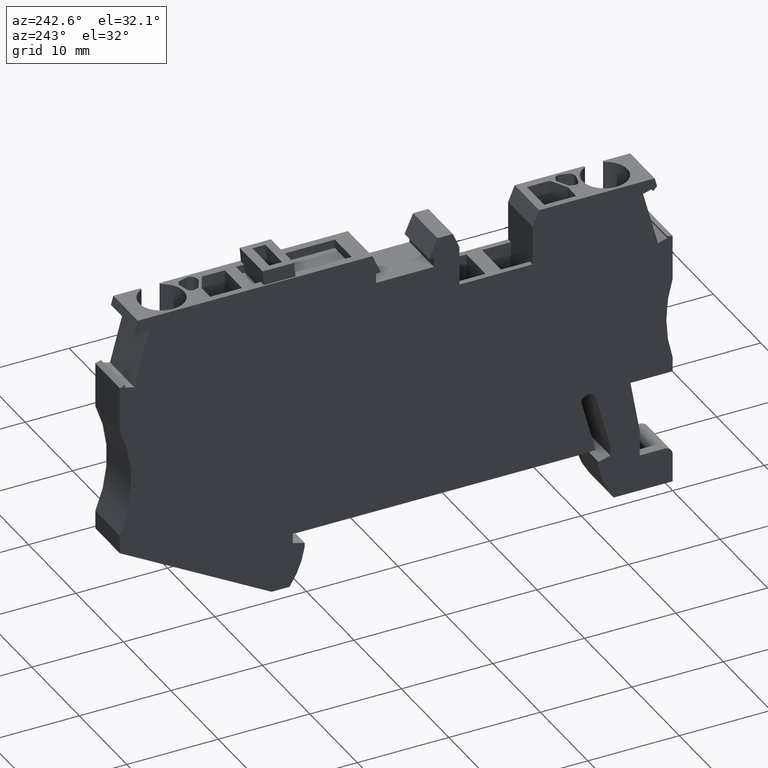
[diagram: clean part render]
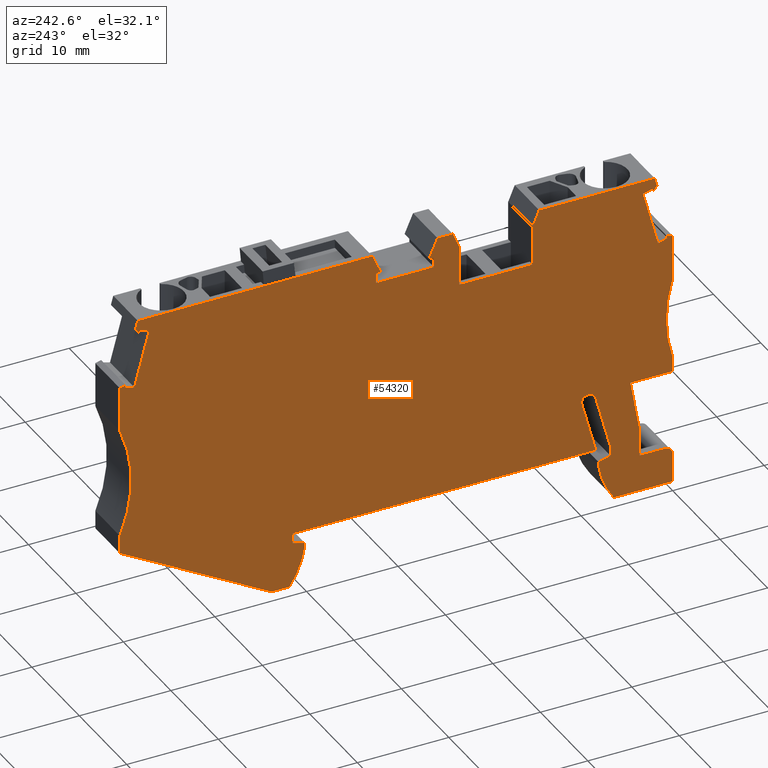
[diagram: same view with one face highlighted and labeled with its STEP entity id]
A machine part, auxiliary view. The second image highlights one B-rep face of the part: STEP entity #54320.
In plain terms, the highlighted planar face has unit normal (1, 0, 0).
Its self-contained STEP definition (entity closure, byte-faithful):
#670=CARTESIAN_POINT('',(-15.5678327783275,-38.3999999999948,
48.5199999999973));
#680=VERTEX_POINT('',#670);
#710=CARTESIAN_POINT('',(-15.5678327783241,-40.5280919748539,
48.5199999999973));
#720=DIRECTION('',(0.,-1.,0.));
#730=VECTOR('',#720,1.);
#740=LINE('',#710,#730);
#750=CARTESIAN_POINT('',(-15.5678327783241,-39.5000000000014,
48.5199999999973));
#760=VERTEX_POINT('',#750);
#770=EDGE_CURVE('',#680,#760,#740,.T.);
#1300=CARTESIAN_POINT('',(-18.7678327783247,-40.4000000000018,
48.5199999999973));
#1310=VERTEX_POINT('',#1300);
#1340=CARTESIAN_POINT('',(-18.7678327783247,-40.1351813799645,
48.5199999999973));
#1350=DIRECTION('',(0.,1.,0.));
#1360=VECTOR('',#1350,1.);
#1370=LINE('',#1340,#1360);
#1380=CARTESIAN_POINT('',(-18.7678327783247,-37.5384100015805,
48.5199999999973));
#1390=VERTEX_POINT('',#1380);
#1400=EDGE_CURVE('',#1310,#1390,#1370,.T.);
#1690=CARTESIAN_POINT('',(9.51676875458973,-11.2550000000016,
48.5199999999973));
#1700=VERTEX_POINT('',#1690);
#1850=CARTESIAN_POINT('',(10.0446672216767,-11.2550000000016,
48.5199999999973));
#1860=VERTEX_POINT('',#1850);
#1890=CARTESIAN_POINT('',(-30.9543174626305,-11.2550000000016,
48.5199999999973));
#1900=DIRECTION('',(1.,0.,0.));
#1910=VECTOR('',#1900,1.);
#1920=LINE('',#1890,#1910);
#1930=EDGE_CURVE('',#1700,#1860,#1920,.T.);
#2610=CARTESIAN_POINT('',(3.71966722167661,-12.3250000000012,
48.5199999999973));
#2620=VERTEX_POINT('',#2610);
#2670=CARTESIAN_POINT('',(-31.0856969427963,-12.3249999999992,
48.5199999999942));
#2680=DIRECTION('',(-1.,5.79813974610488E-14,0.));
#2690=VECTOR('',#2680,1.);
#2700=LINE('',#2670,#2690);
#2710=CARTESIAN_POINT('',(10.0446672216768,-12.3250000000016,
48.5199999999973));
#2720=VERTEX_POINT('',#2710);
#2730=EDGE_CURVE('',#2720,#2620,#2700,.T.);
#3660=CARTESIAN_POINT('',(-12.4395449513892,-32.6963521812907,
48.5199999999973));
#3670=VERTEX_POINT('',#3660);
#3700=CARTESIAN_POINT('',(-13.1156930297916,-32.5151788497187,
48.5199999999973));
#3710=DIRECTION('',(0.,0.,1.));
#3720=DIRECTION('',(1.,0.,0.));
#3730=AXIS2_PLACEMENT_3D('',#3700,#3710,#3720);
#3740=CIRCLE('',#3730,0.700000000000186);
#3750=CARTESIAN_POINT('',(-12.9558416625104,-31.8336749683074,
48.5199999999973));
#3760=VERTEX_POINT('',#3750);
#3770=EDGE_CURVE('',#3670,#3760,#3740,.T.);
#4530=CARTESIAN_POINT('',(-21.7289289220527,-16.1288855555983,
48.5199999999973));
#4540=VERTEX_POINT('',#4530);
#4690=CARTESIAN_POINT('',(-22.3678327783245,-16.3000793279225,
48.5199999999973));
#4700=VERTEX_POINT('',#4690);
#4730=CARTESIAN_POINT('',(-31.8869546500592,-18.8507203460335,
48.5199999999973));
#4740=DIRECTION('',(-0.965925826290942,-0.25881904509553,0.));
#4750=VECTOR('',#4740,1.);
#4760=LINE('',#4730,#4750);
#4770=EDGE_CURVE('',#4540,#4700,#4760,.T.);
#8210=CARTESIAN_POINT('',(-22.3678327783245,-21.2000000000028,
48.5199999999973));
#8220=VERTEX_POINT('',#8210);
#8250=CARTESIAN_POINT('',(-22.3678327783245,-39.6931569607141,
48.5199999999973));
#8260=DIRECTION('',(-2.05391259555654E-15,1.,0.));
#8270=VECTOR('',#8260,1.);
#8280=LINE('',#8250,#8270);
#8290=EDGE_CURVE('',#8220,#4700,#8280,.T.);
#8460=CARTESIAN_POINT('',(-27.8621918696753,-39.0185344922397,
48.5199999999973));
#8470=DIRECTION('',(0.258819045103216,0.965925826288882,0.));
#8480=VECTOR('',#8470,1.);
#8490=LINE('',#8460,#8480);
#8500=CARTESIAN_POINT('',(-21.7994073205286,-16.3919145195456,
48.5199999999973));
#8510=VERTEX_POINT('',#8500);
#8520=EDGE_CURVE('',#8510,#4540,#8490,.T.);
#8880=CARTESIAN_POINT('',(38.0321672216756,-35.2,48.5199999999973));
#8890=VERTEX_POINT('',#8880);
#8940=CARTESIAN_POINT('',(-39.1523305504364,-78.0224586081626,
48.5199999999973));
#8950=DIRECTION('',(-0.874435210897321,-0.485142311021166,0.));
#8960=VECTOR('',#8950,1.);
#8970=LINE('',#8940,#8960);
#8980=CARTESIAN_POINT('',(21.4498082777127,-44.4000000000015,
48.5199999999973));
#8990=VERTEX_POINT('',#8980);
#9000=EDGE_CURVE('',#8890,#8990,#8970,.T.);
#9920=CARTESIAN_POINT('',(17.8321672216754,-39.8483339501617,
48.5199999999973));
#9930=VERTEX_POINT('',#9920);
#9960=CARTESIAN_POINT('',(-36.2442529339963,-54.3380670604362,
48.5199999999973));
#9970=DIRECTION('',(0.965925826289086,0.258819045102457,0.));
#9980=VECTOR('',#9970,1.);
#9990=LINE('',#9960,#9980);
#10000=CARTESIAN_POINT('',(19.1321672216756,-39.5000000000013,
48.5199999999973));
#10010=VERTEX_POINT('',#10000);
#10020=EDGE_CURVE('',#9930,#10010,#9990,.T.);
#10340=CARTESIAN_POINT('',(19.1321672216756,-44.7887162381846,
48.5199999999973));
#10350=DIRECTION('',(0.,1.,0.));
#10360=VECTOR('',#10350,1.);
#10370=LINE('',#10340,#10360);
#10380=CARTESIAN_POINT('',(19.1321672216756,-38.4000000000014,
48.5199999999973));
#10390=VERTEX_POINT('',#10380);
#10400=EDGE_CURVE('',#10010,#10390,#10370,.T.);
#11610=CARTESIAN_POINT('',(17.8321672216751,-40.300000000002,
48.5199999999973));
#11620=VERTEX_POINT('',#11610);
#11650=CARTESIAN_POINT('',(17.8321672216721,-44.6290963090104,
48.5199999999973));
#11660=DIRECTION('',(6.9022565440946E-13,1.,0.));
#11670=VECTOR('',#11660,1.);
#11680=LINE('',#11650,#11670);
#11690=EDGE_CURVE('',#11620,#9930,#11680,.T.);
#11860=CARTESIAN_POINT('',(27.2261399010515,-38.8846282117038,
48.5199999999973));
#11870=DIRECTION('',(0.,0.,-1.));
#11880=DIRECTION('',(-1.,0.,0.));
#11890=AXIS2_PLACEMENT_3D('',#11860,#11870,#11880);
#11900=CIRCLE('',#11890,9.499999999999);
#11910=CARTESIAN_POINT('',(19.4911108748079,-44.4000000000014,
48.5199999999973));
#11920=VERTEX_POINT('',#11910);
#11930=EDGE_CURVE('',#11920,#11620,#11900,.T.);
#13360=CARTESIAN_POINT('',(-35.0240117337568,-44.3999999999983,
48.5199999999973));
#13370=DIRECTION('',(-1.,5.79120085220097E-14,0.));
#13380=VECTOR('',#13370,1.);
#13390=LINE('',#13360,#13380);
#13400=EDGE_CURVE('',#8990,#11920,#13390,.T.);
#15210=CARTESIAN_POINT('',(38.0321672216756,-33.2000000000027,
48.5199999999973));
#15220=VERTEX_POINT('',#15210);
#15250=CARTESIAN_POINT('',(38.0321672216756,-47.1093444392495,
48.5199999999973));
#15260=DIRECTION('',(-8.32667268468867E-17,-1.,0.));
#15270=VECTOR('',#15260,1.);
#15280=LINE('',#15250,#15270);
#15290=EDGE_CURVE('',#15220,#8890,#15280,.T.);
#16740=CARTESIAN_POINT('',(-19.1288362261254,-10.559370046527,
48.5199999999973));
#16750=VERTEX_POINT('',#16740);
#16800=CARTESIAN_POINT('',(-30.4949591286781,-7.5138265937166,
48.5199999999973));
#16810=DIRECTION('',(0.9659258262891,-0.258819045102404,0.));
#16820=VECTOR('',#16810,1.);
#16830=LINE('',#16800,#16820);
#16840=CARTESIAN_POINT('',(-20.1623768602549,-10.2824336682674,
48.5199999999973));
#16850=VERTEX_POINT('',#16840);
#16860=EDGE_CURVE('',#16850,#16750,#16830,.T.);
#17170=CARTESIAN_POINT('',(-16.1198905892186,-40.4603077989502,
48.5199999999973));
#17180=DIRECTION('',(0.258819045103168,0.965925826288895,0.));
#17190=VECTOR('',#17180,1.);
#17200=LINE('',#17170,#17190);
#17210=CARTESIAN_POINT('',(-13.9582471789267,-32.3929447639189,
48.5199999999973));
#17220=VERTEX_POINT('',#17210);
#17230=EDGE_CURVE('',#680,#17220,#17200,.T.);
#17640=CARTESIAN_POINT('',(-31.2733580505142,-13.8533770723114,
48.5199999999973));
#17650=DIRECTION('',(-0.96592582628901,0.25881904510274,0.));
#17660=VECTOR('',#17650,1.);
#17670=LINE('',#17640,#17660);
#17680=CARTESIAN_POINT('',(-20.7658666864001,-16.6688508978053,
48.5199999999973));
#17690=VERTEX_POINT('',#17680);
#17700=EDGE_CURVE('',#17690,#8510,#17670,.T.);
#17970=CARTESIAN_POINT('',(-15.9267764314572,-44.4000000000014,
48.5199999999973));
#17980=VERTEX_POINT('',#17970);
#18030=CARTESIAN_POINT('',(-35.0240117337573,-44.4000000000022,
48.5199999999973));
#18040=DIRECTION('',(-1.,-3.8219427622721E-14,0.));
#18050=VECTOR('',#18040,1.);
#18060=LINE('',#18030,#18050);
#18070=CARTESIAN_POINT('',(-22.3678327783247,-44.4000000000017,
48.5199999999973));
#18080=VERTEX_POINT('',#18070);
#18090=EDGE_CURVE('',#17980,#18080,#18060,.T.);
#18780=CARTESIAN_POINT('',(-34.2873043683398,-38.4000000000014,
48.5199999999973));
#18790=DIRECTION('',(-1.,0.,0.));
#18800=VECTOR('',#18790,1.);
#18810=LINE('',#18780,#18800);
#18820=CARTESIAN_POINT('',(-13.9678327783249,-38.4000000000014,
48.5199999999973));
#18830=VERTEX_POINT('',#18820);
#18840=EDGE_CURVE('',#10390,#18830,#18810,.T.);
#19160=CARTESIAN_POINT('',(-33.8218110628281,-34.6088612600111,
48.5199999999973));
#19170=DIRECTION('',(0.96592582628904,-0.258819045102626,0.));
#19180=VECTOR('',#19170,1.);
#19190=LINE('',#19160,#19180);
#19200=CARTESIAN_POINT('',(-14.2678327783247,-39.8483339501618,
48.5199999999973));
#19210=VERTEX_POINT('',#19200);
#19220=EDGE_CURVE('',#760,#19210,#19190,.T.);
#19510=CARTESIAN_POINT('',(-20.232855258731,-10.5454626322169,
48.5199999999973));
#19520=VERTEX_POINT('',#19510);
#19620=CARTESIAN_POINT('',(-27.8621918696399,-39.0185344922441,
48.5199999999973));
#19630=DIRECTION('',(0.258819045101928,0.965925826289227,0.));
#19640=VECTOR('',#19630,1.);
#19650=LINE('',#19620,#19640);
#19660=EDGE_CURVE('',#19520,#16850,#19650,.T.);
#24330=CARTESIAN_POINT('',(-14.5708539323056,-40.6505055846918,
48.5199999999973));
#24340=DIRECTION('',(0.258819045102995,0.965925826288942,0.));
#24350=VECTOR('',#24340,1.);
#24360=LINE('',#24330,#24350);
#24370=EDGE_CURVE('',#18830,#3670,#24360,.T.);
#24990=CARTESIAN_POINT('',(10.0446672216767,-43.6729115409796,
48.5199999999942));
#25000=DIRECTION('',(0.,1.,0.));
#25010=VECTOR('',#25000,1.);
#25020=LINE('',#24990,#25010);
#25030=EDGE_CURVE('',#2720,#1860,#25020,.T.);
#27400=CARTESIAN_POINT('',(-20.6655984466231,-10.1127194443259,
48.5199999999973));
#27410=VERTEX_POINT('',#27400);
#27440=CARTESIAN_POINT('',(-28.3934111192612,-38.9533089699361,
48.5199999999973));
#27450=DIRECTION('',(-0.258819045102936,-0.965925826288957,0.));
#27460=VECTOR('',#27450,1.);
#27470=LINE('',#27440,#27460);
#27480=CARTESIAN_POINT('',(-20.4076385489789,-9.15000000000396,
48.5199999999973));
#27490=VERTEX_POINT('',#27480);
#27500=EDGE_CURVE('',#27490,#27410,#27470,.T.);
#28380=CARTESIAN_POINT('',(0.9321672216753,-15.1500000000016,
48.5199999999973));
#28390=VERTEX_POINT('',#28380);
#28420=CARTESIAN_POINT('',(0.932167221675449,-42.5540372297518,
48.5199999999973));
#28430=DIRECTION('',(-5.53723733531797E-15,1.,0.));
#28440=VECTOR('',#28430,1.);
#28450=LINE('',#28420,#28440);
#28460=CARTESIAN_POINT('',(0.93216722167535,-10.8500000000034,
48.5199999999973));
#28470=VERTEX_POINT('',#28460);
#28480=EDGE_CURVE('',#28390,#28470,#28450,.T.);
#29500=CARTESIAN_POINT('',(4.24756568876222,-11.2550000000016,
48.5199999999973));
#29510=VERTEX_POINT('',#29500);
#29540=CARTESIAN_POINT('',(-30.9543174626305,-11.2550000000016,
48.5199999999973));
#29550=DIRECTION('',(1.,0.,0.));
#29560=VECTOR('',#29550,1.);
#29570=LINE('',#29540,#29560);
#29580=CARTESIAN_POINT('',(3.71966722167667,-11.2550000000016,
48.5199999999973));
#29590=VERTEX_POINT('',#29580);
#29600=EDGE_CURVE('',#29590,#29510,#29570,.T.);
#32060=CARTESIAN_POINT('',(10.4418215966535,-9.15000000000096,
48.5199999999973));
#32070=VERTEX_POINT('',#32060);
#32100=CARTESIAN_POINT('',(-30.6958559619292,-9.14999999999613,
48.5199999999973));
#32110=DIRECTION('',(-1.,1.17433840429726E-13,0.));
#32120=VECTOR('',#32110,1.);
#32130=LINE('',#32100,#32120);
#32140=CARTESIAN_POINT('',(36.07197299233,-9.15000000000398,
48.5199999999973));
#32150=VERTEX_POINT('',#32140);
#32160=EDGE_CURVE('',#32150,#32070,#32130,.T.);
#38840=CARTESIAN_POINT('',(-22.3678327783247,-39.6931569607141,
48.5199999999973));
#38850=DIRECTION('',(0.,1.,0.));
#38860=VECTOR('',#38850,1.);
#38870=LINE('',#38840,#38860);
#38880=CARTESIAN_POINT('',(-22.3678327783247,-41.3000000000017,
48.5199999999973));
#38890=VERTEX_POINT('',#38880);
#38900=EDGE_CURVE('',#18080,#38890,#38870,.T.);
#39630=CARTESIAN_POINT('',(-13.1855065178956,-32.6000000000015,
48.5199999999973));
#39640=DIRECTION('',(0.,0.,1.));
#39650=DIRECTION('',(1.,0.,0.));
#39660=AXIS2_PLACEMENT_3D('',#39630,#39640,#39650);
#39670=CIRCLE('',#39660,0.799999999999994);
#39680=EDGE_CURVE('',#3760,#17220,#39670,.T.);
#39870=CARTESIAN_POINT('',(-21.4678327783241,-41.3000000000016,
48.5199999999973));
#39880=DIRECTION('',(0.,0.,1.));
#39890=DIRECTION('',(1.,0.,0.));
#39900=AXIS2_PLACEMENT_3D('',#39870,#39880,#39890);
#39910=CIRCLE('',#39900,0.899999999999826);
#39920=CARTESIAN_POINT('',(-21.467832778324,-40.4000000000018,
48.5199999999973));
#39930=VERTEX_POINT('',#39920);
#39940=EDGE_CURVE('',#39930,#38890,#39910,.T.);
#40550=CARTESIAN_POINT('',(-7.06783277832441,-10.8500000000033,
48.5199999999973));
#40560=VERTEX_POINT('',#40550);
#40590=CARTESIAN_POINT('',(-7.06783277832433,-41.5717607425285,
48.5199999999973));
#40600=DIRECTION('',(2.76167977375508E-15,-1.,0.));
#40610=VECTOR('',#40600,1.);
#40620=LINE('',#40590,#40610);
#40630=CARTESIAN_POINT('',(-7.0678327783244,-15.1500000000016,
48.5199999999973));
#40640=VERTEX_POINT('',#40630);
#40650=EDGE_CURVE('',#40560,#40640,#40620,.T.);
#42230=CARTESIAN_POINT('',(-30.6958559619306,-9.15000000000734,
48.5199999999973));
#42240=DIRECTION('',(-1.,-1.21042065259758E-13,0.));
#42250=VECTOR('',#42240,1.);
#42260=LINE('',#42230,#42250);
#42270=CARTESIAN_POINT('',(3.32251284670154,-9.15000000000322,
48.5199999999973));
#42280=VERTEX_POINT('',#42270);
#42290=CARTESIAN_POINT('',(1.65066694095677,-9.15000000000342,
48.5199999999973));
#42300=VERTEX_POINT('',#42290);
#42310=EDGE_CURVE('',#42280,#42300,#42260,.T.);
#44650=CARTESIAN_POINT('',(36.4302011297503,-16.6688508978054,
48.5199999999973));
#44660=VERTEX_POINT('',#44650);
#44740=CARTESIAN_POINT('',(34.7931706694759,-10.5593700465279,
48.5199999999973));
#44750=VERTEX_POINT('',#44740);
#44780=CARTESIAN_POINT('',(44.8096873663856,-47.9415192742283,
48.5199999999973));
#44790=DIRECTION('',(-0.258819045102705,0.965925826289019,0.));
#44800=VECTOR('',#44790,1.);
#44810=LINE('',#44780,#44800);
#44820=EDGE_CURVE('',#44660,#44750,#44810,.T.);
#45410=CARTESIAN_POINT('',(35.8971897020823,-10.545462632218,
48.5199999999973));
#45420=VERTEX_POINT('',#45410);
#45500=CARTESIAN_POINT('',(36.3299328899745,-10.112719444327,
48.5199999999973));
#45510=VERTEX_POINT('',#45500);
#45540=CARTESIAN_POINT('',(3.56530628123667,-42.8773460529763,
48.5199999999973));
#45550=DIRECTION('',(0.707106781187503,0.707106781185593,0.));
#45560=VECTOR('',#45550,1.);
#45570=LINE('',#45540,#45560);
#45580=EDGE_CURVE('',#45420,#45510,#45570,.T.);
#46060=CARTESIAN_POINT('',(45.955117560187,-48.0821604176192,
48.5199999999973));
#46070=DIRECTION('',(0.258819045101928,-0.965925826289227,0.));
#46080=VECTOR('',#46070,1.);
#46090=LINE('',#46060,#46080);
#46100=CARTESIAN_POINT('',(35.8267113036061,-10.2824336682681,
48.5199999999973));
#46110=VERTEX_POINT('',#46100);
#46120=EDGE_CURVE('',#46110,#45420,#46090,.T.);
#46390=CARTESIAN_POINT('',(-33.1026799550058,-28.7520083907732,
48.5199999999973));
#46400=DIRECTION('',(0.9659258262891,0.258819045102404,0.));
#46410=VECTOR('',#46400,1.);
#46420=LINE('',#46390,#46410);
#46430=EDGE_CURVE('',#44750,#46110,#46420,.T.);
#47130=CARTESIAN_POINT('',(46.5224801796062,-48.1518237877173,
48.5199999999973));
#47140=DIRECTION('',(0.258819045102926,-0.96592582628896,0.));
#47150=VECTOR('',#47140,1.);
#47160=LINE('',#47130,#47150);
#47170=EDGE_CURVE('',#32150,#45510,#47160,.T.);
#47380=CARTESIAN_POINT('',(-3.97307229660355,-41.9517495493763,
48.5199999999973));
#47390=DIRECTION('',(0.402320578212711,0.915498854366618,0.));
#47400=VECTOR('',#47390,1.);
#47410=LINE('',#47380,#47400);
#47420=EDGE_CURVE('',#1700,#32070,#47410,.T.);
#48150=CARTESIAN_POINT('',(-14.2678327783248,-40.3000000000025,
48.5199999999973));
#48160=VERTEX_POINT('',#48150);
#48190=CARTESIAN_POINT('',(-23.6618054577009,-38.8846282117039,
48.5199999999973));
#48200=DIRECTION('',(0.,0.,1.));
#48210=DIRECTION('',(1.,0.,0.));
#48220=AXIS2_PLACEMENT_3D('',#48190,#48200,#48210);
#48230=CIRCLE('',#48220,9.499999999999);
#48240=EDGE_CURVE('',#17980,#48160,#48230,.T.);
#48420=CARTESIAN_POINT('',(51.7798943065431,-27.2000000000027,
48.5199999999973));
#48430=DIRECTION('',(0.,0.,1.));
#48440=DIRECTION('',(1.,0.,0.));
#48450=AXIS2_PLACEMENT_3D('',#48420,#48430,#48440);
#48460=CIRCLE('',#48450,15.);
#48470=CARTESIAN_POINT('',(38.0321672216757,-21.2000000000026,
48.5199999999973));
#48480=VERTEX_POINT('',#48470);
#48490=EDGE_CURVE('',#48480,#15220,#48460,.T.);
#49010=CARTESIAN_POINT('',(-14.2678327783248,-40.6877119040276,
48.5199999999973));
#49020=DIRECTION('',(0.,-1.,0.));
#49030=VECTOR('',#49020,1.);
#49040=LINE('',#49010,#49030);
#49050=EDGE_CURVE('',#19210,#48160,#49040,.T.);
#49250=CARTESIAN_POINT('',(-29.7042555077718,-1.07406238320153,
48.5199999999973));
#49260=DIRECTION('',(-0.707106781187495,0.7071067811856,0.));
#49270=VECTOR('',#49260,1.);
#49280=LINE('',#49250,#49270);
#49290=EDGE_CURVE('',#19520,#27410,#49280,.T.);
#50930=CARTESIAN_POINT('',(-29.3566806060777,1.75670802586475,
48.5199999999973));
#50940=DIRECTION('',(0.965925826290939,-0.25881904509554,0.));
#50950=VECTOR('',#50940,1.);
#50960=LINE('',#50930,#50950);
#50970=CARTESIAN_POINT('',(37.3932633654053,-16.1288855555997,
48.5199999999973));
#50980=VERTEX_POINT('',#50970);
#50990=CARTESIAN_POINT('',(38.0321672216757,-16.3000793279236,
48.5199999999973));
#51000=VERTEX_POINT('',#50990);
#51010=EDGE_CURVE('',#50980,#51000,#50960,.T.);
#51370=CARTESIAN_POINT('',(37.4637417638806,-16.3919145195448,
48.5199999999973));
#51380=VERTEX_POINT('',#51370);
#51410=CARTESIAN_POINT('',(45.9551175602499,-48.0821604176269,
48.5199999999973));
#51420=DIRECTION('',(0.258819045103503,-0.965925826288805,0.));
#51430=VECTOR('',#51420,1.);
#51440=LINE('',#51410,#51430);
#51450=EDGE_CURVE('',#50980,#51380,#51440,.T.);
#52080=CARTESIAN_POINT('',(38.0321672216757,-47.1093444392495,
48.5199999999973));
#52090=DIRECTION('',(-5.55111512312578E-17,-1.,0.));
#52100=VECTOR('',#52090,1.);
#52110=LINE('',#52080,#52100);
#52120=EDGE_CURVE('',#51000,#48480,#52110,.T.);
#52590=CARTESIAN_POINT('',(-33.9340399848925,-35.5228924805422,
48.5199999999973));
#52600=DIRECTION('',(-0.965925826288933,-0.258819045103026,0.));
#52610=VECTOR('',#52600,1.);
#52620=LINE('',#52590,#52610);
#52630=EDGE_CURVE('',#51380,#44660,#52620,.T.);
#52850=CARTESIAN_POINT('',(-34.5328734901456,-40.4000000000018,
48.5199999999973));
#52860=DIRECTION('',(-1.,0.,0.));
#52870=VECTOR('',#52860,1.);
#52880=LINE('',#52850,#52870);
#52890=EDGE_CURVE('',#1310,#39930,#52880,.T.);
#53020=CARTESIAN_POINT('',(19.1321672216756,-38.4000000000014,
48.5199999999973));
#53030=DIRECTION('',(0.,0.,1.));
#53040=DIRECTION('',(1.,0.,0.));
#53050=AXIS2_PLACEMENT_3D('',#53020,#53030,#53040);
#53060=PLANE('',#53050);
#53070=CARTESIAN_POINT('',(-30.6958559619303,-9.15000000000518,
48.5199999999973));
#53080=DIRECTION('',(1.,1.1740608485411E-13,0.));
#53090=VECTOR('',#53080,1.);
#53100=LINE('',#53070,#53090);
#53110=CARTESIAN_POINT('',(-7.78633249760625,-9.15000000000248,
48.5199999999973));
#53120=VERTEX_POINT('',#53110);
#53130=EDGE_CURVE('',#27490,#53120,#53100,.T.);
#53140=ORIENTED_EDGE('',*,*,#53130,.T.);
#53150=ORIENTED_EDGE('',*,*,#27500,.F.);
#53160=ORIENTED_EDGE('',*,*,#49290,.T.);
#53170=ORIENTED_EDGE('',*,*,#19660,.F.);
#53180=ORIENTED_EDGE('',*,*,#16860,.F.);
#53190=CARTESIAN_POINT('',(-26.7897303657746,-39.1502162070814,
48.5199999999973));
#53200=DIRECTION('',(0.258819045102715,0.965925826289016,0.));
#53210=VECTOR('',#53200,1.);
#53220=LINE('',#53190,#53210);
#53230=EDGE_CURVE('',#17690,#16750,#53220,.T.);
#53240=ORIENTED_EDGE('',*,*,#53230,.T.);
#53250=ORIENTED_EDGE('',*,*,#17700,.F.);
#53260=ORIENTED_EDGE('',*,*,#8520,.F.);
#53270=ORIENTED_EDGE('',*,*,#4770,.F.);
#53280=ORIENTED_EDGE('',*,*,#8290,.T.);
#53290=CARTESIAN_POINT('',(-36.6769207995787,-25.7000000000028,
48.5199999999973));
#53300=DIRECTION('',(0.,0.,1.));
#53310=DIRECTION('',(1.,0.,0.));
#53320=AXIS2_PLACEMENT_3D('',#53290,#53300,#53310);
#53330=CIRCLE('',#53320,15.);
#53340=CARTESIAN_POINT('',(-22.3678327783245,-30.2000000000028,
48.5199999999973));
#53350=VERTEX_POINT('',#53340);
#53360=EDGE_CURVE('',#53350,#8220,#53330,.T.);
#53370=ORIENTED_EDGE('',*,*,#53360,.T.);
#53380=CARTESIAN_POINT('',(-22.3678327783245,-39.6931569607141,
48.5199999999973));
#53390=DIRECTION('',(-2.05391259555654E-15,1.,0.));
#53400=VECTOR('',#53390,1.);
#53410=LINE('',#53380,#53400);
#53420=CARTESIAN_POINT('',(-22.3678327783245,-31.8000000000004,
48.5199999999973));
#53430=VERTEX_POINT('',#53420);
#53440=EDGE_CURVE('',#53430,#53350,#53410,.T.);
#53450=ORIENTED_EDGE('',*,*,#53440,.T.);
#53460=CARTESIAN_POINT('',(-33.4769262663803,-31.7999999999985,
48.5199999999973));
#53470=DIRECTION('',(-1.,1.71668235182665E-13,0.));
#53480=VECTOR('',#53470,1.);
#53490=LINE('',#53460,#53480);
#53500=CARTESIAN_POINT('',(-17.755996268679,-31.8000000000011,
48.5199999999973));
#53510=VERTEX_POINT('',#53500);
#53520=EDGE_CURVE('',#53510,#53430,#53490,.T.);
#53530=ORIENTED_EDGE('',*,*,#53520,.T.);
#53540=CARTESIAN_POINT('',(-19.2160104842472,-40.0801520771364,
48.5199999999973));
#53550=DIRECTION('',(0.17364817766693,0.984807753012208,0.));
#53560=VECTOR('',#53550,1.);
#53570=LINE('',#53540,#53560);
#53580=EDGE_CURVE('',#1390,#53510,#53570,.T.);
#53590=ORIENTED_EDGE('',*,*,#53580,.T.);
#53600=ORIENTED_EDGE('',*,*,#1400,.T.);
#53610=ORIENTED_EDGE('',*,*,#52890,.F.);
#53620=ORIENTED_EDGE('',*,*,#39940,.F.);
#53630=ORIENTED_EDGE('',*,*,#38900,.T.);
#53640=ORIENTED_EDGE('',*,*,#18090,.T.);
#53650=ORIENTED_EDGE('',*,*,#48240,.F.);
#53660=ORIENTED_EDGE('',*,*,#49050,.T.);
#53670=ORIENTED_EDGE('',*,*,#19220,.T.);
#53680=ORIENTED_EDGE('',*,*,#770,.T.);
#53690=ORIENTED_EDGE('',*,*,#17230,.F.);
#53700=ORIENTED_EDGE('',*,*,#39680,.T.);
#53710=ORIENTED_EDGE('',*,*,#3770,.T.);
#53720=ORIENTED_EDGE('',*,*,#24370,.T.);
#53730=ORIENTED_EDGE('',*,*,#18840,.T.);
#53740=ORIENTED_EDGE('',*,*,#10400,.T.);
#53750=ORIENTED_EDGE('',*,*,#10020,.T.);
#53760=ORIENTED_EDGE('',*,*,#11690,.T.);
#53770=ORIENTED_EDGE('',*,*,#11930,.T.);
#53780=ORIENTED_EDGE('',*,*,#13400,.T.);
#53790=ORIENTED_EDGE('',*,*,#9000,.T.);
#53800=ORIENTED_EDGE('',*,*,#15290,.T.);
#53810=ORIENTED_EDGE('',*,*,#48490,.T.);
#53820=ORIENTED_EDGE('',*,*,#52120,.T.);
#53830=ORIENTED_EDGE('',*,*,#51010,.T.);
#53840=ORIENTED_EDGE('',*,*,#51450,.F.);
#53850=ORIENTED_EDGE('',*,*,#52630,.F.);
#53860=ORIENTED_EDGE('',*,*,#44820,.F.);
#53870=ORIENTED_EDGE('',*,*,#46430,.F.);
#53880=ORIENTED_EDGE('',*,*,#46120,.F.);
#53890=ORIENTED_EDGE('',*,*,#45580,.F.);
#53900=ORIENTED_EDGE('',*,*,#47170,.T.);
#53910=ORIENTED_EDGE('',*,*,#32160,.F.);
#53920=ORIENTED_EDGE('',*,*,#47420,.T.);
#53930=ORIENTED_EDGE('',*,*,#1930,.F.);
#53940=ORIENTED_EDGE('',*,*,#25030,.T.);
#53950=ORIENTED_EDGE('',*,*,#2730,.F.);
#53960=CARTESIAN_POINT('',(3.71966722167659,-42.8962991932687,
48.5199999999942));
#53970=DIRECTION('',(0.,-1.,0.));
#53980=VECTOR('',#53970,1.);
#53990=LINE('',#53960,#53980);
#54000=EDGE_CURVE('',#29590,#2620,#53990,.T.);
#54010=ORIENTED_EDGE('',*,*,#54000,.T.);
#54020=ORIENTED_EDGE('',*,*,#29600,.F.);
#54030=CARTESIAN_POINT('',(18.9756823710978,-44.7695023145185,
48.5199999999973));
#54040=DIRECTION('',(0.402320578211921,-0.915498854366965,0.));
#54050=VECTOR('',#54040,1.);
#54060=LINE('',#54030,#54050);
#54070=EDGE_CURVE('',#42280,#29510,#54060,.T.);
#54080=ORIENTED_EDGE('',*,*,#54070,.T.);
#54090=ORIENTED_EDGE('',*,*,#42310,.F.);
#54100=CARTESIAN_POINT('',(-11.8063846804767,-40.9899397279071,
48.5199999999973));
#54110=DIRECTION('',(-0.389303997086923,-0.921109330021222,0.));
#54120=VECTOR('',#54110,1.);
#54130=LINE('',#54100,#54120);
#54140=EDGE_CURVE('',#42300,#28470,#54130,.T.);
#54150=ORIENTED_EDGE('',*,*,#54140,.F.);
#54160=ORIENTED_EDGE('',*,*,#28480,.T.);
#54170=CARTESIAN_POINT('',(-31.4325633273473,-15.1500000000016,
48.5199999999973));
#54180=DIRECTION('',(-1.,0.,0.));
#54190=VECTOR('',#54180,1.);
#54200=LINE('',#54170,#54190);
#54210=EDGE_CURVE('',#28390,#40640,#54200,.T.);
#54220=ORIENTED_EDGE('',*,*,#54210,.F.);
#54230=ORIENTED_EDGE('',*,*,#40650,.T.);
#54240=CARTESIAN_POINT('',(6.62732765293212,-43.2533150025752,
48.5199999999973));
#54250=DIRECTION('',(-0.389303997086923,0.921109330021222,0.));
#54260=VECTOR('',#54250,1.);
#54270=LINE('',#54240,#54260);
#54280=EDGE_CURVE('',#40560,#53120,#54270,.T.);
#54290=ORIENTED_EDGE('',*,*,#54280,.F.);
#54300=EDGE_LOOP('',(#54290,#54230,#54220,#54160,#54150,#54090,#54080,
#54020,#54010,#53950,#53940,#53930,#53920,#53910,#53900,#53890,#53880,
#53870,#53860,#53850,#53840,#53830,#53820,#53810,#53800,#53790,#53780,
#53770,#53760,#53750,#53740,#53730,#53720,#53710,#53700,#53690,#53680,
#53670,#53660,#53650,#53640,#53630,#53620,#53610,#53600,#53590,#53530,
#53450,#53370,#53280,#53270,#53260,#53250,#53240,#53180,#53170,#53160,
#53150,#53140));
#54310=FACE_OUTER_BOUND('',#54300,.T.);
#54320=ADVANCED_FACE('',(#54310),#53060,.F.);